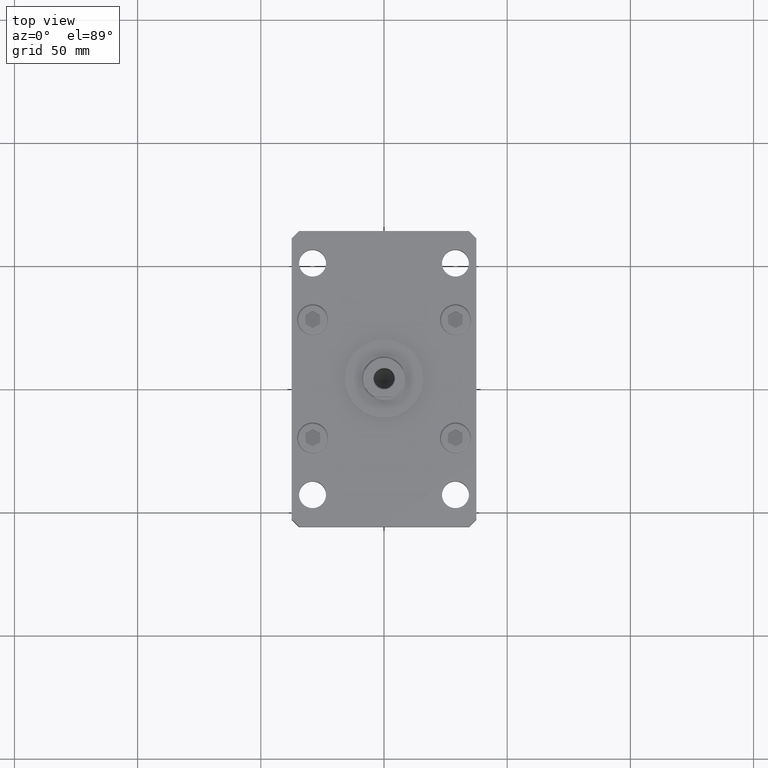
[diagram: clean part render]
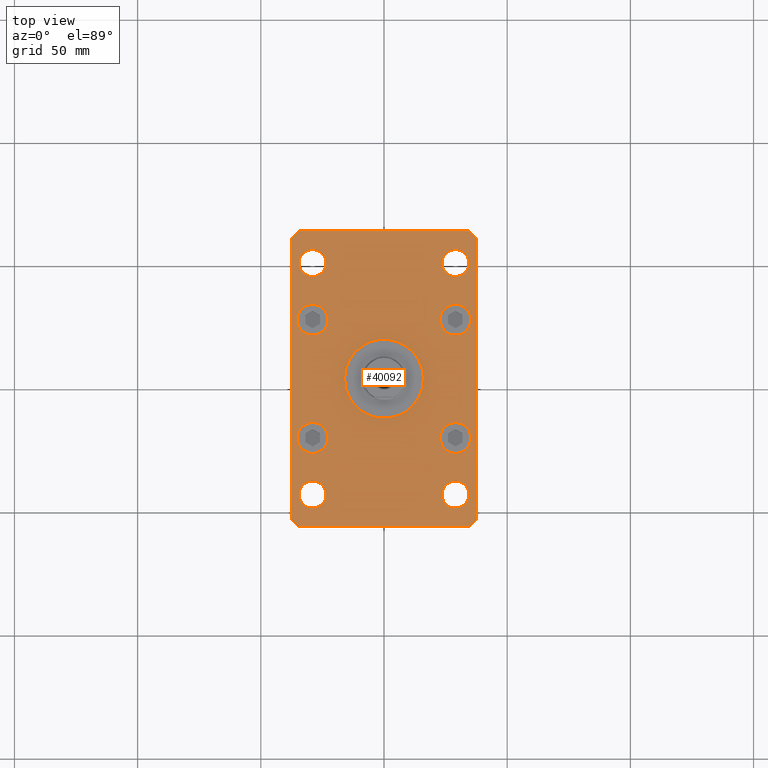
[diagram: same view with one face highlighted and labeled with its STEP entity id]
A machine part, top view. The second image highlights one B-rep face of the part: STEP entity #40092.
In plain terms, the highlighted planar face has unit normal (0, 0, 1).
Its self-contained STEP definition (entity closure, byte-faithful):
#165 = CARTESIAN_POINT ( 'NONE',  ( -34.49999999999999289, -60.00000000000002132, 15.00000000000000000 ) ) ;
#650 = VECTOR ( 'NONE', #25433, 1000.000000000000000 ) ;
#934 = DIRECTION ( 'NONE',  ( 0.000000000000000000, 0.000000000000000000, 1.000000000000000000 ) ) ;
#1078 = AXIS2_PLACEMENT_3D ( 'NONE', #9089, #934, #17470 ) ;
#1080 = FACE_OUTER_BOUND ( 'NONE', #20443, .T. ) ;
#1226 = EDGE_CURVE ( 'NONE', #18884, #6145, #17487, .T. ) ;
#1353 = CARTESIAN_POINT ( 'NONE',  ( -28.99999999999999645, -47.00000000000002132, 15.00000000000000000 ) ) ;
#1492 = ORIENTED_EDGE ( 'NONE', *, *, #18967, .T. ) ;
#1767 = EDGE_CURVE ( 'NONE', #5852, #28416, #23605, .T. ) ;
#1987 = CARTESIAN_POINT ( 'NONE',  ( 16.00000000000000000, 1.959434878635765131E-15, 15.00000000000000000 ) ) ;
#2092 = EDGE_CURVE ( 'NONE', #24550, #33506, #3818, .T. ) ;
#2635 = DIRECTION ( 'NONE',  ( 0.000000000000000000, 0.000000000000000000, 1.000000000000000000 ) ) ;
#3482 = CARTESIAN_POINT ( 'NONE',  ( -34.49999999999999289, -60.00000000000002132, 15.00000000000000000 ) ) ;
#3773 = DIRECTION ( 'NONE',  ( 0.000000000000000000, 0.000000000000000000, 1.000000000000000000 ) ) ;
#3818 = LINE ( 'NONE', #44485, #39160 ) ;
#4233 = VERTEX_POINT ( 'NONE', #39943 ) ;
#4577 = ORIENTED_EDGE ( 'NONE', *, *, #1226, .F. ) ;
#5188 = ORIENTED_EDGE ( 'NONE', *, *, #2092, .T. ) ;
#5473 = CARTESIAN_POINT ( 'NONE',  ( 29.00000000000000711, 24.00000000000000711, 15.00000000000000000 ) ) ;
#5493 = DIRECTION ( 'NONE',  ( 0.000000000000000000, 0.000000000000000000, 1.000000000000000000 ) ) ;
#5668 = CARTESIAN_POINT ( 'NONE',  ( -29.00000000000000355, 24.00000000000000000, 15.00000000000000000 ) ) ;
#5763 = DIRECTION ( 'NONE',  ( 1.000000000000000000, 0.000000000000000000, 0.000000000000000000 ) ) ;
#5852 = VERTEX_POINT ( 'NONE', #1987 ) ;
#6145 = VERTEX_POINT ( 'NONE', #34179 ) ;
#6176 = AXIS2_PLACEMENT_3D ( 'NONE', #16320, #23256, #39521 ) ;
#6302 = CARTESIAN_POINT ( 'NONE',  ( 29.00000000000000711, 47.00000000000000711, 15.00000000000000000 ) ) ;
#6545 = ORIENTED_EDGE ( 'NONE', *, *, #26489, .T. ) ;
#6736 = VERTEX_POINT ( 'NONE', #51063 ) ;
#6787 = VECTOR ( 'NONE', #29599, 1000.000000000000000 ) ;
#6865 = ORIENTED_EDGE ( 'NONE', *, *, #40842, .F. ) ;
#6939 = VECTOR ( 'NONE', #30820, 1000.000000000000000 ) ;
#7411 = EDGE_LOOP ( 'NONE', ( #6865, #19485 ) ) ;
#7574 = VECTOR ( 'NONE', #49615, 1000.000000000000000 ) ;
#7607 = ORIENTED_EDGE ( 'NONE', *, *, #26639, .T. ) ;
#7737 = EDGE_CURVE ( 'NONE', #11300, #12736, #35891, .T. ) ;
#8961 = PLANE ( 'NONE',  #47695 ) ;
#9089 = CARTESIAN_POINT ( 'NONE',  ( 0.000000000000000000, 0.000000000000000000, 15.00000000000000000 ) ) ;
#9226 = DIRECTION ( 'NONE',  ( 0.000000000000000000, 0.000000000000000000, 1.000000000000000000 ) ) ;
#9269 = CARTESIAN_POINT ( 'NONE',  ( 29.00000000000001066, -47.00000000000001421, 15.00000000000000000 ) ) ;
#9702 = CIRCLE ( 'NONE', #19234, 6.249999999999998224 ) ;
#9705 = LINE ( 'NONE', #30551, #6939 ) ;
#9759 = DIRECTION ( 'NONE',  ( 1.000000000000000000, 0.000000000000000000, 0.000000000000000000 ) ) ;
#9841 = EDGE_CURVE ( 'NONE', #28416, #5852, #50530, .T. ) ;
#9935 = LINE ( 'NONE', #30238, #37352 ) ;
#9948 = DIRECTION ( 'NONE',  ( 1.000000000000000000, 0.000000000000000000, 0.000000000000000000 ) ) ;
#10006 = DIRECTION ( 'NONE',  ( 0.000000000000000000, 0.000000000000000000, 1.000000000000000000 ) ) ;
#10228 = ORIENTED_EDGE ( 'NONE', *, *, #11701, .F. ) ;
#10246 = CARTESIAN_POINT ( 'NONE',  ( 29.00000000000000711, 47.00000000000000711, 15.00000000000000000 ) ) ;
#10588 = CARTESIAN_POINT ( 'NONE',  ( -35.25000000000000000, -24.00000000000002132, 15.00000000000000000 ) ) ;
#10774 = AXIS2_PLACEMENT_3D ( 'NONE', #41039, #24769, #49432 ) ;
#11050 = DIRECTION ( 'NONE',  ( 1.000000000000000000, 0.000000000000000000, 0.000000000000000000 ) ) ;
#11103 = CARTESIAN_POINT ( 'NONE',  ( -22.75000000000000000, -24.00000000000002132, 15.00000000000000000 ) ) ;
#11234 = AXIS2_PLACEMENT_3D ( 'NONE', #6302, #14440, #17414 ) ;
#11300 = VERTEX_POINT ( 'NONE', #42761 ) ;
#11322 = EDGE_CURVE ( 'NONE', #12736, #11300, #45387, .T. ) ;
#11701 = EDGE_CURVE ( 'NONE', #33361, #46400, #27214, .T. ) ;
#12680 = DIRECTION ( 'NONE',  ( 1.000000000000000000, 0.000000000000000000, 0.000000000000000000 ) ) ;
#12736 = VERTEX_POINT ( 'NONE', #26105 ) ;
#12794 = CARTESIAN_POINT ( 'NONE',  ( -29.00000000000000355, 47.00000000000000000, 15.00000000000000000 ) ) ;
#13056 = VERTEX_POINT ( 'NONE', #10588 ) ;
#13079 = LINE ( 'NONE', #38275, #6787 ) ;
#13235 = LINE ( 'NONE', #41697, #650 ) ;
#13254 = DIRECTION ( 'NONE',  ( 1.000000000000000000, 0.000000000000000000, 0.000000000000000000 ) ) ;
#13357 = VERTEX_POINT ( 'NONE', #17254 ) ;
#13363 = CARTESIAN_POINT ( 'NONE',  ( -37.49999999999999289, -57.00000000000002132, 15.00000000000000000 ) ) ;
#13465 = CARTESIAN_POINT ( 'NONE',  ( -34.49999999999992184, 59.99999999999997158, 15.00000000000000000 ) ) ;
#13770 = DIRECTION ( 'NONE',  ( 1.000000000000000000, 0.000000000000000000, 0.000000000000000000 ) ) ;
#13805 = CIRCLE ( 'NONE', #11234, 5.499999999999994671 ) ;
#14015 = ORIENTED_EDGE ( 'NONE', *, *, #43025, .F. ) ;
#14055 = CARTESIAN_POINT ( 'NONE',  ( 29.00000000000000355, -24.00000000000001421, 15.00000000000000000 ) ) ;
#14188 = AXIS2_PLACEMENT_3D ( 'NONE', #10246, #2635, #11050 ) ;
#14437 = CARTESIAN_POINT ( 'NONE',  ( 35.25000000000000711, 24.00000000000000711, 15.00000000000000000 ) ) ;
#14440 = DIRECTION ( 'NONE',  ( 0.000000000000000000, 0.000000000000000000, 1.000000000000000000 ) ) ;
#14490 = EDGE_LOOP ( 'NONE', ( #28827, #4577 ) ) ;
#14598 = DIRECTION ( 'NONE',  ( 1.000000000000000000, 0.000000000000000000, 0.000000000000000000 ) ) ;
#14850 = CIRCLE ( 'NONE', #33009, 5.499999999999994671 ) ;
#15068 = AXIS2_PLACEMENT_3D ( 'NONE', #36338, #16811, #24934 ) ;
#15311 = EDGE_LOOP ( 'NONE', ( #17812, #23658 ) ) ;
#16036 = LINE ( 'NONE', #45022, #7574 ) ;
#16299 = VERTEX_POINT ( 'NONE', #40853 ) ;
#16320 = CARTESIAN_POINT ( 'NONE',  ( -28.99999999999999645, -47.00000000000002132, 15.00000000000000000 ) ) ;
#16601 = DIRECTION ( 'NONE',  ( 0.000000000000000000, 0.000000000000000000, 1.000000000000000000 ) ) ;
#16715 = DIRECTION ( 'NONE',  ( 1.000000000000000000, 2.011273595335427833E-16, 0.000000000000000000 ) ) ;
#16773 = CIRCLE ( 'NONE', #28038, 5.499999999999994671 ) ;
#16811 = DIRECTION ( 'NONE',  ( 0.000000000000000000, 0.000000000000000000, 1.000000000000000000 ) ) ;
#16822 = FACE_BOUND ( 'NONE', #35364, .T. ) ;
#17254 = CARTESIAN_POINT ( 'NONE',  ( 34.50000000000013500, 59.99999999999998579, 15.00000000000000000 ) ) ;
#17414 = DIRECTION ( 'NONE',  ( 1.000000000000000000, 0.000000000000000000, 0.000000000000000000 ) ) ;
#17470 = DIRECTION ( 'NONE',  ( 1.000000000000000000, 0.000000000000000000, 0.000000000000000000 ) ) ;
#17487 = CIRCLE ( 'NONE', #22674, 6.250000000000001776 ) ;
#17710 = CARTESIAN_POINT ( 'NONE',  ( -16.00000000000000000, 0.000000000000000000, 15.00000000000000000 ) ) ;
#17812 = ORIENTED_EDGE ( 'NONE', *, *, #11322, .F. ) ;
#18170 = CARTESIAN_POINT ( 'NONE',  ( 23.50000000000001776, -47.00000000000001421, 15.00000000000000000 ) ) ;
#18514 = AXIS2_PLACEMENT_3D ( 'NONE', #40897, #3773, #49558 ) ;
#18884 = VERTEX_POINT ( 'NONE', #14437 ) ;
#18967 = EDGE_CURVE ( 'NONE', #27221, #49908, #16036, .T. ) ;
#19110 = AXIS2_PLACEMENT_3D ( 'NONE', #9269, #16601, #20665 ) ;
#19234 = AXIS2_PLACEMENT_3D ( 'NONE', #20541, #37069, #12680 ) ;
#19485 = ORIENTED_EDGE ( 'NONE', *, *, #44966, .F. ) ;
#20047 = CIRCLE ( 'NONE', #40814, 5.499999999999994671 ) ;
#20279 = EDGE_CURVE ( 'NONE', #33854, #24550, #13235, .T. ) ;
#20443 = EDGE_LOOP ( 'NONE', ( #6545, #31542, #1492, #7607, #24185, #31523, #29410, #5188 ) ) ;
#20483 = ORIENTED_EDGE ( 'NONE', *, *, #37250, .F. ) ;
#20541 = CARTESIAN_POINT ( 'NONE',  ( -28.99999999999999645, -24.00000000000002132, 15.00000000000000000 ) ) ;
#20543 = ORIENTED_EDGE ( 'NONE', *, *, #30283, .F. ) ;
#20665 = DIRECTION ( 'NONE',  ( 1.000000000000000000, 0.000000000000000000, 0.000000000000000000 ) ) ;
#20773 = LINE ( 'NONE', #165, #28436 ) ;
#21243 = CARTESIAN_POINT ( 'NONE',  ( 23.50000000000001776, 47.00000000000000711, 15.00000000000000000 ) ) ;
#21415 = FACE_BOUND ( 'NONE', #49010, .T. ) ;
#21561 = VERTEX_POINT ( 'NONE', #11103 ) ;
#21762 = CIRCLE ( 'NONE', #6176, 5.499999999999994671 ) ;
#21956 = EDGE_CURVE ( 'NONE', #6145, #18884, #40520, .T. ) ;
#22553 = CARTESIAN_POINT ( 'NONE',  ( 29.00000000000000711, 24.00000000000000711, 15.00000000000000000 ) ) ;
#22674 = AXIS2_PLACEMENT_3D ( 'NONE', #5473, #26338, #52343 ) ;
#23256 = DIRECTION ( 'NONE',  ( 0.000000000000000000, 0.000000000000000000, 1.000000000000000000 ) ) ;
#23257 = VERTEX_POINT ( 'NONE', #45775 ) ;
#23518 = CIRCLE ( 'NONE', #51100, 6.249999999999998224 ) ;
#23605 = CIRCLE ( 'NONE', #1078, 16.00000000000000000 ) ;
#23658 = ORIENTED_EDGE ( 'NONE', *, *, #7737, .F. ) ;
#23684 = CARTESIAN_POINT ( 'NONE',  ( -23.50000000000001066, 47.00000000000000000, 15.00000000000000000 ) ) ;
#23718 = CIRCLE ( 'NONE', #18514, 6.249999999999998224 ) ;
#23784 = CARTESIAN_POINT ( 'NONE',  ( 37.50000000000011369, -56.99999999999990763, 15.00000000000000000 ) ) ;
#24185 = ORIENTED_EDGE ( 'NONE', *, *, #45166, .T. ) ;
#24350 = ORIENTED_EDGE ( 'NONE', *, *, #38176, .F. ) ;
#24550 = VERTEX_POINT ( 'NONE', #13363 ) ;
#24769 = DIRECTION ( 'NONE',  ( 0.000000000000000000, 0.000000000000000000, 1.000000000000000000 ) ) ;
#24934 = DIRECTION ( 'NONE',  ( 1.000000000000000000, 0.000000000000000000, 0.000000000000000000 ) ) ;
#24985 = DIRECTION ( 'NONE',  ( 0.000000000000000000, 0.000000000000000000, 1.000000000000000000 ) ) ;
#25433 = DIRECTION ( 'NONE',  ( -7.304098846218132695E-16, -1.000000000000000000, 0.000000000000000000 ) ) ;
#25482 = DIRECTION ( 'NONE',  ( 1.000000000000000000, 0.000000000000000000, -0.000000000000000000 ) ) ;
#25916 = CARTESIAN_POINT ( 'NONE',  ( -29.00000000000000355, 24.00000000000000000, 15.00000000000000000 ) ) ;
#26105 = CARTESIAN_POINT ( 'NONE',  ( 22.75000000000000711, -24.00000000000001421, 15.00000000000000000 ) ) ;
#26287 = CARTESIAN_POINT ( 'NONE',  ( -35.25000000000000000, 24.00000000000000000, 15.00000000000000000 ) ) ;
#26338 = DIRECTION ( 'NONE',  ( 0.000000000000000000, 0.000000000000000000, 1.000000000000000000 ) ) ;
#26489 = EDGE_CURVE ( 'NONE', #33506, #23257, #20773, .T. ) ;
#26639 = EDGE_CURVE ( 'NONE', #49908, #13357, #13079, .T. ) ;
#27214 = CIRCLE ( 'NONE', #10774, 5.499999999999998224 ) ;
#27221 = VERTEX_POINT ( 'NONE', #23784 ) ;
#28038 = AXIS2_PLACEMENT_3D ( 'NONE', #47069, #50595, #9948 ) ;
#28116 = AXIS2_PLACEMENT_3D ( 'NONE', #51426, #34620, #13770 ) ;
#28416 = VERTEX_POINT ( 'NONE', #17710 ) ;
#28436 = VECTOR ( 'NONE', #16715, 1000.000000000000000 ) ;
#28489 = VERTEX_POINT ( 'NONE', #21243 ) ;
#28658 = CARTESIAN_POINT ( 'NONE',  ( -34.50000000000000000, 47.00000000000000000, 15.00000000000000000 ) ) ;
#28827 = ORIENTED_EDGE ( 'NONE', *, *, #21956, .F. ) ;
#29039 = DIRECTION ( 'NONE',  ( 1.000000000000000000, 0.000000000000000000, 0.000000000000000000 ) ) ;
#29410 = ORIENTED_EDGE ( 'NONE', *, *, #20279, .T. ) ;
#29516 = CARTESIAN_POINT ( 'NONE',  ( 34.50000000000000711, -47.00000000000001421, 15.00000000000000000 ) ) ;
#29599 = DIRECTION ( 'NONE',  ( -0.7071067811865335839, 0.7071067811865614505, 0.000000000000000000 ) ) ;
#29976 = DIRECTION ( 'NONE',  ( 0.000000000000000000, 0.000000000000000000, 1.000000000000000000 ) ) ;
#30050 = VERTEX_POINT ( 'NONE', #51355 ) ;
#30071 = DIRECTION ( 'NONE',  ( 0.000000000000000000, 0.000000000000000000, 1.000000000000000000 ) ) ;
#30238 = CARTESIAN_POINT ( 'NONE',  ( 34.50000000000013500, 59.99999999999998579, 15.00000000000000000 ) ) ;
#30283 = EDGE_CURVE ( 'NONE', #4233, #28489, #13805, .T. ) ;
#30425 = VECTOR ( 'NONE', #39194, 1000.000000000000114 ) ;
#30551 = CARTESIAN_POINT ( 'NONE',  ( 34.50000000000002132, -60.00000000000000711, 15.00000000000000000 ) ) ;
#30562 = DIRECTION ( 'NONE',  ( 0.000000000000000000, 0.000000000000000000, 1.000000000000000000 ) ) ;
#30820 = DIRECTION ( 'NONE',  ( 0.7071067811865467956, 0.7071067811865483499, 0.000000000000000000 ) ) ;
#31523 = ORIENTED_EDGE ( 'NONE', *, *, #36323, .T. ) ;
#31542 = ORIENTED_EDGE ( 'NONE', *, *, #31696, .T. ) ;
#31696 = EDGE_CURVE ( 'NONE', #23257, #27221, #9705, .T. ) ;
#32422 = VERTEX_POINT ( 'NONE', #28658 ) ;
#33009 = AXIS2_PLACEMENT_3D ( 'NONE', #12794, #24985, #29039 ) ;
#33150 = AXIS2_PLACEMENT_3D ( 'NONE', #14055, #30562, #14598 ) ;
#33270 = ORIENTED_EDGE ( 'NONE', *, *, #1767, .F. ) ;
#33338 = FACE_BOUND ( 'NONE', #14490, .T. ) ;
#33361 = VERTEX_POINT ( 'NONE', #29516 ) ;
#33506 = VERTEX_POINT ( 'NONE', #3482 ) ;
#33605 = FACE_BOUND ( 'NONE', #40821, .T. ) ;
#33854 = VERTEX_POINT ( 'NONE', #38000 ) ;
#34145 = FACE_BOUND ( 'NONE', #35779, .T. ) ;
#34179 = CARTESIAN_POINT ( 'NONE',  ( 22.75000000000000355, 24.00000000000000711, 15.00000000000000000 ) ) ;
#34620 = DIRECTION ( 'NONE',  ( 0.000000000000000000, 0.000000000000000000, 1.000000000000000000 ) ) ;
#35364 = EDGE_LOOP ( 'NONE', ( #40609, #38454 ) ) ;
#35620 = CIRCLE ( 'NONE', #45143, 6.249999999999998224 ) ;
#35779 = EDGE_LOOP ( 'NONE', ( #43774, #20483 ) ) ;
#35891 = CIRCLE ( 'NONE', #33150, 6.249999999999998224 ) ;
#36323 = EDGE_CURVE ( 'NONE', #30050, #33854, #38661, .T. ) ;
#36338 = CARTESIAN_POINT ( 'NONE',  ( 0.000000000000000000, 0.000000000000000000, 15.00000000000000000 ) ) ;
#37069 = DIRECTION ( 'NONE',  ( 0.000000000000000000, 0.000000000000000000, 1.000000000000000000 ) ) ;
#37250 = EDGE_CURVE ( 'NONE', #21561, #13056, #9702, .T. ) ;
#37276 = EDGE_LOOP ( 'NONE', ( #46609, #24350 ) ) ;
#37352 = VECTOR ( 'NONE', #46779, 1000.000000000000000 ) ;
#37550 = CIRCLE ( 'NONE', #14188, 5.499999999999994671 ) ;
#37851 = DIRECTION ( 'NONE',  ( 1.000000000000000000, 0.000000000000000000, 0.000000000000000000 ) ) ;
#38000 = CARTESIAN_POINT ( 'NONE',  ( -37.49999999999990763, 57.00000000000000711, 15.00000000000000000 ) ) ;
#38176 = EDGE_CURVE ( 'NONE', #38448, #32422, #16773, .T. ) ;
#38213 = FACE_BOUND ( 'NONE', #15311, .T. ) ;
#38275 = CARTESIAN_POINT ( 'NONE',  ( 37.50000000000011369, 56.99999999999988631, 15.00000000000000000 ) ) ;
#38358 = EDGE_LOOP ( 'NONE', ( #14015, #10228 ) ) ;
#38448 = VERTEX_POINT ( 'NONE', #23684 ) ;
#38454 = ORIENTED_EDGE ( 'NONE', *, *, #44747, .F. ) ;
#38661 = LINE ( 'NONE', #13465, #30425 ) ;
#39160 = VECTOR ( 'NONE', #49082, 1000.000000000000114 ) ;
#39194 = DIRECTION ( 'NONE',  ( -0.7071067811865507924, -0.7071067811865442421, 0.000000000000000000 ) ) ;
#39521 = DIRECTION ( 'NONE',  ( 1.000000000000000000, 0.000000000000000000, 0.000000000000000000 ) ) ;
#39943 = CARTESIAN_POINT ( 'NONE',  ( 34.50000000000000000, 47.00000000000000711, 15.00000000000000000 ) ) ;
#40030 = EDGE_CURVE ( 'NONE', #42445, #16299, #20047, .T. ) ;
#40084 = VERTEX_POINT ( 'NONE', #26287 ) ;
#40092 = ADVANCED_FACE ( 'NONE', ( #33605, #42280, #38213, #50140, #16822, #1080, #21415, #34145, #33338, #46087 ), #8961, .T. ) ;
#40115 = ORIENTED_EDGE ( 'NONE', *, *, #51020, .F. ) ;
#40520 = CIRCLE ( 'NONE', #43101, 6.250000000000001776 ) ;
#40609 = ORIENTED_EDGE ( 'NONE', *, *, #40030, .F. ) ;
#40814 = AXIS2_PLACEMENT_3D ( 'NONE', #1353, #9226, #9759 ) ;
#40821 = EDGE_LOOP ( 'NONE', ( #42841, #33270 ) ) ;
#40842 = EDGE_CURVE ( 'NONE', #40084, #6736, #23518, .T. ) ;
#40853 = CARTESIAN_POINT ( 'NONE',  ( -23.50000000000000355, -47.00000000000002132, 15.00000000000000000 ) ) ;
#40897 = CARTESIAN_POINT ( 'NONE',  ( -28.99999999999999645, -24.00000000000002132, 15.00000000000000000 ) ) ;
#41039 = CARTESIAN_POINT ( 'NONE',  ( 29.00000000000001066, -47.00000000000001421, 15.00000000000000000 ) ) ;
#41697 = CARTESIAN_POINT ( 'NONE',  ( -37.49999999999990763, 57.00000000000000711, 15.00000000000000000 ) ) ;
#42280 = FACE_BOUND ( 'NONE', #7411, .T. ) ;
#42445 = VERTEX_POINT ( 'NONE', #44066 ) ;
#42459 = CIRCLE ( 'NONE', #19110, 5.499999999999998224 ) ;
#42761 = CARTESIAN_POINT ( 'NONE',  ( 35.25000000000000000, -24.00000000000001421, 15.00000000000000000 ) ) ;
#42814 = CARTESIAN_POINT ( 'NONE',  ( 37.50000000000011369, 56.99999999999988631, 15.00000000000000000 ) ) ;
#42841 = ORIENTED_EDGE ( 'NONE', *, *, #9841, .F. ) ;
#43025 = EDGE_CURVE ( 'NONE', #46400, #33361, #42459, .T. ) ;
#43101 = AXIS2_PLACEMENT_3D ( 'NONE', #22553, #5493, #5763 ) ;
#43774 = ORIENTED_EDGE ( 'NONE', *, *, #50954, .F. ) ;
#44066 = CARTESIAN_POINT ( 'NONE',  ( -34.49999999999999289, -47.00000000000002132, 15.00000000000000000 ) ) ;
#44485 = CARTESIAN_POINT ( 'NONE',  ( -37.49999999999999289, -57.00000000000002132, 15.00000000000000000 ) ) ;
#44747 = EDGE_CURVE ( 'NONE', #16299, #42445, #21762, .T. ) ;
#44966 = EDGE_CURVE ( 'NONE', #6736, #40084, #35620, .T. ) ;
#45022 = CARTESIAN_POINT ( 'NONE',  ( 37.50000000000011369, -56.99999999999990763, 15.00000000000000000 ) ) ;
#45143 = AXIS2_PLACEMENT_3D ( 'NONE', #25916, #29976, #37851 ) ;
#45166 = EDGE_CURVE ( 'NONE', #13357, #30050, #9935, .T. ) ;
#45387 = CIRCLE ( 'NONE', #28116, 6.249999999999998224 ) ;
#45493 = EDGE_CURVE ( 'NONE', #32422, #38448, #14850, .T. ) ;
#45775 = CARTESIAN_POINT ( 'NONE',  ( 34.50000000000002132, -60.00000000000000711, 15.00000000000000000 ) ) ;
#46087 = FACE_BOUND ( 'NONE', #38358, .T. ) ;
#46400 = VERTEX_POINT ( 'NONE', #18170 ) ;
#46609 = ORIENTED_EDGE ( 'NONE', *, *, #45493, .F. ) ;
#46779 = DIRECTION ( 'NONE',  ( -1.000000000000000000, -2.011273595335426847E-16, 0.000000000000000000 ) ) ;
#47069 = CARTESIAN_POINT ( 'NONE',  ( -29.00000000000000355, 47.00000000000000000, 15.00000000000000000 ) ) ;
#47695 = AXIS2_PLACEMENT_3D ( 'NONE', #50686, #30071, #25482 ) ;
#49010 = EDGE_LOOP ( 'NONE', ( #40115, #20543 ) ) ;
#49082 = DIRECTION ( 'NONE',  ( 0.7071067811865474617, -0.7071067811865474617, 0.000000000000000000 ) ) ;
#49432 = DIRECTION ( 'NONE',  ( 1.000000000000000000, 0.000000000000000000, 0.000000000000000000 ) ) ;
#49558 = DIRECTION ( 'NONE',  ( 1.000000000000000000, 0.000000000000000000, 0.000000000000000000 ) ) ;
#49615 = DIRECTION ( 'NONE',  ( 0.000000000000000000, 1.000000000000000000, 0.000000000000000000 ) ) ;
#49908 = VERTEX_POINT ( 'NONE', #42814 ) ;
#50140 = FACE_BOUND ( 'NONE', #37276, .T. ) ;
#50530 = CIRCLE ( 'NONE', #15068, 16.00000000000000000 ) ;
#50595 = DIRECTION ( 'NONE',  ( 0.000000000000000000, 0.000000000000000000, 1.000000000000000000 ) ) ;
#50686 = CARTESIAN_POINT ( 'NONE',  ( 0.000000000000000000, 0.000000000000000000, 15.00000000000000000 ) ) ;
#50954 = EDGE_CURVE ( 'NONE', #13056, #21561, #23718, .T. ) ;
#51020 = EDGE_CURVE ( 'NONE', #28489, #4233, #37550, .T. ) ;
#51063 = CARTESIAN_POINT ( 'NONE',  ( -22.75000000000000711, 24.00000000000000000, 15.00000000000000000 ) ) ;
#51100 = AXIS2_PLACEMENT_3D ( 'NONE', #5668, #10006, #13254 ) ;
#51355 = CARTESIAN_POINT ( 'NONE',  ( -34.49999999999992184, 59.99999999999997158, 15.00000000000000000 ) ) ;
#51426 = CARTESIAN_POINT ( 'NONE',  ( 29.00000000000000355, -24.00000000000001421, 15.00000000000000000 ) ) ;
#52343 = DIRECTION ( 'NONE',  ( 1.000000000000000000, 0.000000000000000000, 0.000000000000000000 ) ) ;